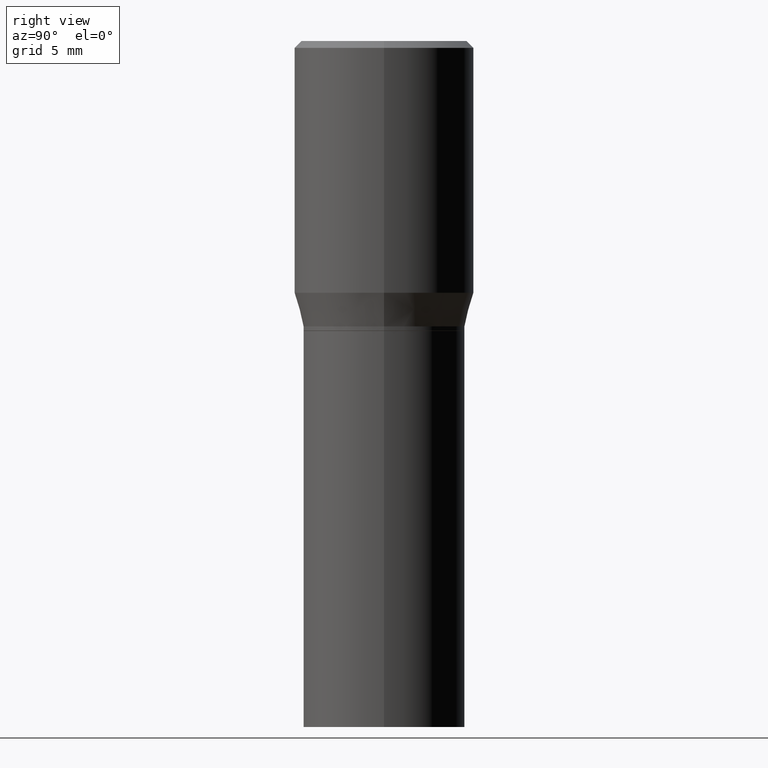
[diagram: clean part render]
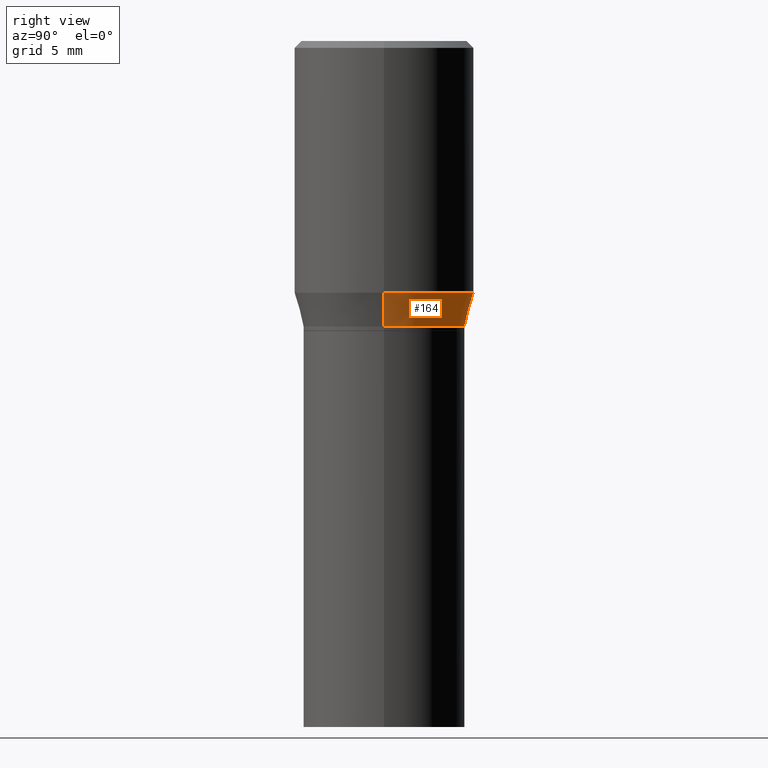
[diagram: same view with one face highlighted and labeled with its STEP entity id]
A machine part, right view. The second image highlights one B-rep face of the part: STEP entity #164.
In plain terms, the highlighted conical surface has half-angle 15 deg.
Its self-contained STEP definition (entity closure, byte-faithful):
#20 = ORIENTED_EDGE ( 'NONE', *, *, #406, .T. ) ;
#25 = LINE ( 'NONE', #444, #435 ) ;
#29 = AXIS2_PLACEMENT_3D ( 'NONE', #307, #174, #436 ) ;
#34 = VERTEX_POINT ( 'NONE', #294 ) ;
#39 = ORIENTED_EDGE ( 'NONE', *, *, #304, .F. ) ;
#52 = DIRECTION ( 'NONE',  ( 1.000000000000000000, -6.982962677686265922E-15, 0.000000000000000000 ) ) ;
#55 = CARTESIAN_POINT ( 'NONE',  ( 1.525727988178907107E-29, -2.178335207304238928E-15, -0.6239000000000001211 ) ) ;
#61 = DIRECTION ( 'NONE',  ( 0.2588190451025220717, 1.565188264969615854E-15, 0.9659258262890678681 ) ) ;
#68 = ORIENTED_EDGE ( 'NONE', *, *, #199, .F. ) ;
#71 = VECTOR ( 'NONE', #145, 39.37007874015748854 ) ;
#76 = AXIS2_PLACEMENT_3D ( 'NONE', #230, #236, #52 ) ;
#85 = FACE_OUTER_BOUND ( 'NONE', #462, .T. ) ;
#92 = DIRECTION ( 'NONE',  ( -2.445468806185136597E-29, 3.491481338843145583E-15, 1.000000000000000000 ) ) ;
#142 = CIRCLE ( 'NONE', #187, 0.1771500000000001129 ) ;
#145 = DIRECTION ( 'NONE',  ( -0.2588190451025220717, 5.211531920934554197E-15, 0.9659258262890678681 ) ) ;
#164 = ADVANCED_FACE ( 'NONE', ( #85 ), #413, .T. ) ;
#174 = DIRECTION ( 'NONE',  ( -2.445468806185136597E-29, 3.491481338843145583E-15, 1.000000000000000000 ) ) ;
#187 = AXIS2_PLACEMENT_3D ( 'NONE', #55, #92, #205 ) ;
#199 = EDGE_CURVE ( 'NONE', #358, #34, #319, .T. ) ;
#205 = DIRECTION ( 'NONE',  ( 1.000000000000000000, -6.982962677686265922E-15, 0.000000000000000000 ) ) ;
#230 = CARTESIAN_POINT ( 'NONE',  ( 1.525727988178907107E-29, -2.178335207304238928E-15, -0.6239000000000001211 ) ) ;
#236 = DIRECTION ( 'NONE',  ( -2.445468806185136597E-29, 3.491481338843145583E-15, 1.000000000000000000 ) ) ;
#244 = CARTESIAN_POINT ( 'NONE',  ( 0.1968500000000000527, -3.296232811127031185E-15, -0.5503785990908939274 ) ) ;
#281 = LINE ( 'NONE', #415, #71 ) ;
#291 = VERTEX_POINT ( 'NONE', #344 ) ;
#294 = CARTESIAN_POINT ( 'NONE',  ( -0.1968500000000000527, -5.229332326807317894E-16, -0.5503785990908939274 ) ) ;
#304 = EDGE_CURVE ( 'NONE', #385, #358, #25, .T. ) ;
#307 = CARTESIAN_POINT ( 'NONE',  ( 1.345933695668656235E-29, -1.921636608024489183E-15, -0.5503785990908939274 ) ) ;
#319 = CIRCLE ( 'NONE', #29, 0.1968500000000000527 ) ;
#325 = CARTESIAN_POINT ( 'NONE',  ( 0.1771500000000001129, -3.415367045656361716E-15, -0.6239000000000001211 ) ) ;
#344 = CARTESIAN_POINT ( 'NONE',  ( -0.1771500000000001129, -7.212709917929761191E-16, -0.6239000000000001211 ) ) ;
#358 = VERTEX_POINT ( 'NONE', #244 ) ;
#385 = VERTEX_POINT ( 'NONE', #325 ) ;
#406 = EDGE_CURVE ( 'NONE', #291, #34, #281, .T. ) ;
#413 = CONICAL_SURFACE ( 'NONE', #76, 0.1771500000000001129, 0.2617993877991508511 ) ;
#415 = CARTESIAN_POINT ( 'NONE',  ( -0.1771500000000001129, -9.196087509052206461E-16, -0.6239000000000001211 ) ) ;
#417 = ORIENTED_EDGE ( 'NONE', *, *, #428, .T. ) ;
#428 = EDGE_CURVE ( 'NONE', #385, #291, #142, .T. ) ;
#435 = VECTOR ( 'NONE', #61, 39.37007874015748854 ) ;
#436 = DIRECTION ( 'NONE',  ( 1.000000000000000000, -6.982962677686267499E-15, 0.000000000000000000 ) ) ;
#444 = CARTESIAN_POINT ( 'NONE',  ( 0.1771500000000001129, -3.415367045656361716E-15, -0.6239000000000001211 ) ) ;
#462 = EDGE_LOOP ( 'NONE', ( #417, #20, #68, #39 ) ) ;